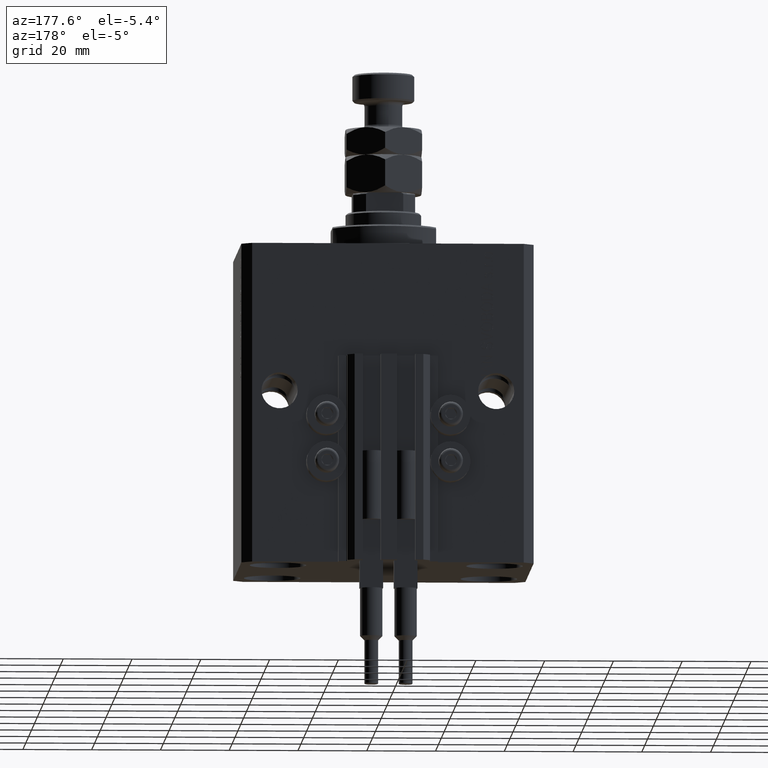
[diagram: clean part render]
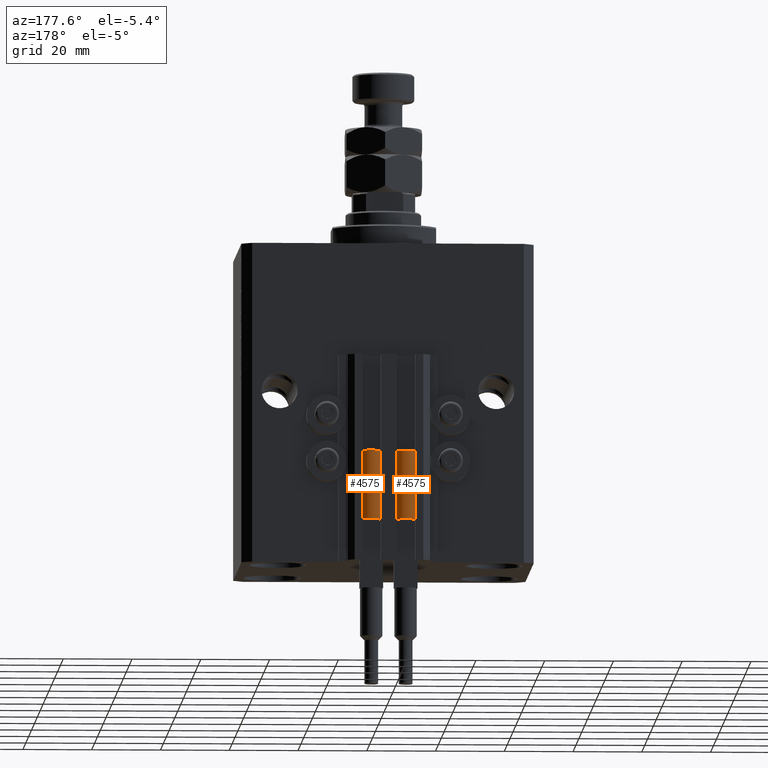
[diagram: same view with one multi-face feature highlighted, each face labeled with its STEP entity id]
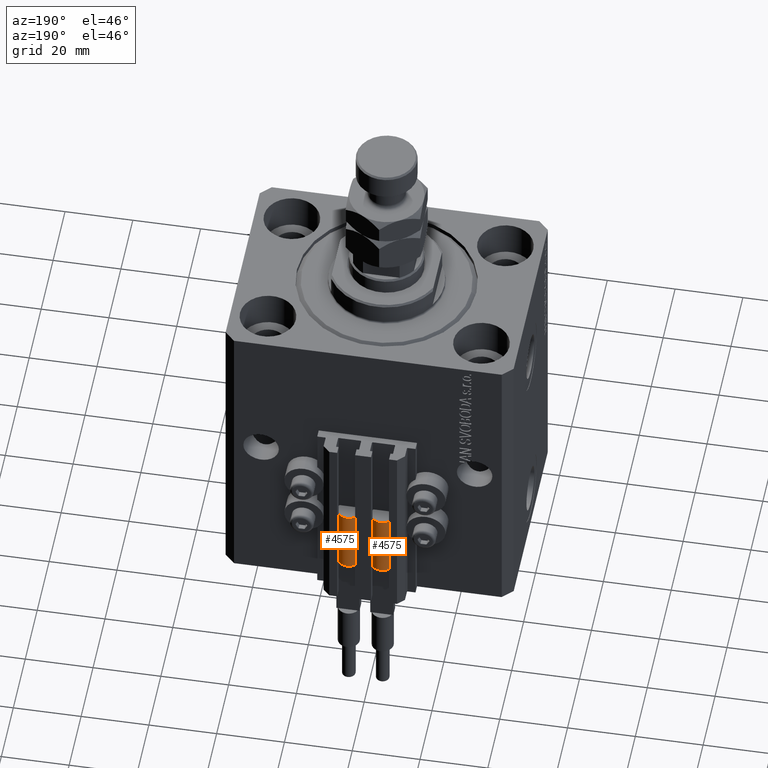
[diagram: same view with one multi-face feature highlighted, each face labeled with its STEP entity id]
A machine part, auxiliary view. The highlighted faces form ONE feature: a constant-radius fillet chain: 2 tangent blend faces with common blend radius 3.4 mm. The faces share edges in the B-rep.
A second angle (auxiliary view) of the same feature is appended — it is thin or edge-on in the first view.
Their STEP definitions:
[1] entity #4575 (Cylinder):
#440 = CARTESIAN_POINT ( 'NONE',  ( -3.051229260478471428, 1.500000000000000000, 20.00000000000000000 ) ) ;
#1053 = AXIS2_PLACEMENT_3D ( 'NONE', #26382, #7646, #22076 ) ;
#1371 = AXIS2_PLACEMENT_3D ( 'NONE', #21457, #40475, #25274 ) ;
#2376 = EDGE_LOOP ( 'NONE', ( #30359, #39360, #36001, #9195, #44308, #19512 ) ) ;
#4213 = VECTOR ( 'NONE', #20524, 1000.000000000000000 ) ;
#4240 = EDGE_CURVE ( 'NONE', #38510, #7663, #6944, .T. ) ;
#4380 = VERTEX_POINT ( 'NONE', #42641 ) ;
#4575 = ADVANCED_FACE ( 'NONE', ( #42260 ), #45801, .T. ) ;
#5878 = CIRCLE ( 'NONE', #10762, 3.400000000000000355 ) ;
#6488 = EDGE_CURVE ( 'NONE', #37951, #4380, #28127, .T. ) ;
#6944 = LINE ( 'NONE', #42139, #44544 ) ;
#7646 = DIRECTION ( 'NONE',  ( 0.000000000000000000, 0.000000000000000000, 1.000000000000000000 ) ) ;
#7663 = VERTEX_POINT ( 'NONE', #42529 ) ;
#8330 = VERTEX_POINT ( 'NONE', #33548 ) ;
#9170 = CIRCLE ( 'NONE', #1053, 3.400000000000000355 ) ;
#9195 = ORIENTED_EDGE ( 'NONE', *, *, #6488, .F. ) ;
#9308 = EDGE_CURVE ( 'NONE', #38510, #8330, #9170, .T. ) ;
#10360 = DIRECTION ( 'NONE',  ( 0.000000000000000000, 0.000000000000000000, 1.000000000000000000 ) ) ;
#10762 = AXIS2_PLACEMENT_3D ( 'NONE', #21004, #10360, #28846 ) ;
#11804 = DIRECTION ( 'NONE',  ( 0.000000000000000000, 0.000000000000000000, 1.000000000000000000 ) ) ;
#15821 = VERTEX_POINT ( 'NONE', #440 ) ;
#16665 = DIRECTION ( 'NONE',  ( -1.000000000000000000, 0.000000000000000000, 0.000000000000000000 ) ) ;
#19512 = ORIENTED_EDGE ( 'NONE', *, *, #20017, .F. ) ;
#20017 = EDGE_CURVE ( 'NONE', #8330, #15821, #30502, .T. ) ;
#20524 = DIRECTION ( 'NONE',  ( -0.000000000000000000, -0.000000000000000000, -1.000000000000000000 ) ) ;
#21004 = CARTESIAN_POINT ( 'NONE',  ( 0.000000000000000000, 0.000000000000000000, 0.000000000000000000 ) ) ;
#21457 = CARTESIAN_POINT ( 'NONE',  ( 0.000000000000000000, 0.000000000000000000, 20.00000000000000000 ) ) ;
#22076 = DIRECTION ( 'NONE',  ( 1.000000000000000000, 0.000000000000000000, 0.000000000000000000 ) ) ;
#22978 = CARTESIAN_POINT ( 'NONE',  ( 3.400000000000000355, 0.000000000000000000, 20.00000000000000000 ) ) ;
#23126 = AXIS2_PLACEMENT_3D ( 'NONE', #31057, #11804, #27247 ) ;
#25274 = DIRECTION ( 'NONE',  ( 1.000000000000000000, 0.000000000000000000, 0.000000000000000000 ) ) ;
#26382 = CARTESIAN_POINT ( 'NONE',  ( 0.000000000000000000, 0.000000000000000000, 20.00000000000000000 ) ) ;
#27063 = DIRECTION ( 'NONE',  ( -0.000000000000000000, -0.000000000000000000, -1.000000000000000000 ) ) ;
#27247 = DIRECTION ( 'NONE',  ( 1.000000000000000000, 0.000000000000000000, 0.000000000000000000 ) ) ;
#27882 = CARTESIAN_POINT ( 'NONE',  ( -3.400000000000000355, 0.000000000000000000, 20.00000000000000000 ) ) ;
#28127 = LINE ( 'NONE', #27882, #4213 ) ;
#28846 = DIRECTION ( 'NONE',  ( 1.000000000000000000, 0.000000000000000000, 0.000000000000000000 ) ) ;
#29581 = CIRCLE ( 'NONE', #23126, 3.400000000000000355 ) ;
#29700 = CARTESIAN_POINT ( 'NONE',  ( -3.399999999999999467, -4.915049848600952119E-16, 20.00000000000000000 ) ) ;
#30359 = ORIENTED_EDGE ( 'NONE', *, *, #9308, .F. ) ;
#30502 = CIRCLE ( 'NONE', #1371, 3.400000000000000355 ) ;
#31057 = CARTESIAN_POINT ( 'NONE',  ( 0.000000000000000000, 0.000000000000000000, 20.00000000000000000 ) ) ;
#33548 = CARTESIAN_POINT ( 'NONE',  ( 3.051229260478471428, 1.500000000000000000, 20.00000000000000000 ) ) ;
#34404 = CARTESIAN_POINT ( 'NONE',  ( 0.000000000000000000, 0.000000000000000000, 20.00000000000000000 ) ) ;
#35467 = EDGE_CURVE ( 'NONE', #7663, #4380, #5878, .T. ) ;
#36001 = ORIENTED_EDGE ( 'NONE', *, *, #35467, .T. ) ;
#37951 = VERTEX_POINT ( 'NONE', #29700 ) ;
#38510 = VERTEX_POINT ( 'NONE', #22978 ) ;
#39360 = ORIENTED_EDGE ( 'NONE', *, *, #4240, .T. ) ;
#40475 = DIRECTION ( 'NONE',  ( 0.000000000000000000, 0.000000000000000000, 1.000000000000000000 ) ) ;
#42139 = CARTESIAN_POINT ( 'NONE',  ( 3.400000000000000355, 4.163799117101001052E-16, 20.00000000000000000 ) ) ;
#42260 = FACE_OUTER_BOUND ( 'NONE', #2376, .T. ) ;
#42529 = CARTESIAN_POINT ( 'NONE',  ( 3.400000000000000355, 4.163799117101001052E-16, 0.000000000000000000 ) ) ;
#42641 = CARTESIAN_POINT ( 'NONE',  ( -3.400000000000000355, 0.000000000000000000, 0.000000000000000000 ) ) ;
#43256 = EDGE_CURVE ( 'NONE', #15821, #37951, #29581, .T. ) ;
#44308 = ORIENTED_EDGE ( 'NONE', *, *, #43256, .F. ) ;
#44544 = VECTOR ( 'NONE', #49475, 1000.000000000000000 ) ;
#44580 = AXIS2_PLACEMENT_3D ( 'NONE', #34404, #27063, #16665 ) ;
#45801 = CYLINDRICAL_SURFACE ( 'NONE', #44580, 3.400000000000000355 ) ;
#49475 = DIRECTION ( 'NONE',  ( -0.000000000000000000, -0.000000000000000000, -1.000000000000000000 ) ) ;
[2] entity #4575 (Cylinder):
#440 = CARTESIAN_POINT ( 'NONE',  ( -3.051229260478471428, 1.500000000000000000, 20.00000000000000000 ) ) ;
#1053 = AXIS2_PLACEMENT_3D ( 'NONE', #26382, #7646, #22076 ) ;
#1371 = AXIS2_PLACEMENT_3D ( 'NONE', #21457, #40475, #25274 ) ;
#2376 = EDGE_LOOP ( 'NONE', ( #30359, #39360, #36001, #9195, #44308, #19512 ) ) ;
#4213 = VECTOR ( 'NONE', #20524, 1000.000000000000000 ) ;
#4240 = EDGE_CURVE ( 'NONE', #38510, #7663, #6944, .T. ) ;
#4380 = VERTEX_POINT ( 'NONE', #42641 ) ;
#4575 = ADVANCED_FACE ( 'NONE', ( #42260 ), #45801, .T. ) ;
#5878 = CIRCLE ( 'NONE', #10762, 3.400000000000000355 ) ;
#6488 = EDGE_CURVE ( 'NONE', #37951, #4380, #28127, .T. ) ;
#6944 = LINE ( 'NONE', #42139, #44544 ) ;
#7646 = DIRECTION ( 'NONE',  ( 0.000000000000000000, 0.000000000000000000, 1.000000000000000000 ) ) ;
#7663 = VERTEX_POINT ( 'NONE', #42529 ) ;
#8330 = VERTEX_POINT ( 'NONE', #33548 ) ;
#9170 = CIRCLE ( 'NONE', #1053, 3.400000000000000355 ) ;
#9195 = ORIENTED_EDGE ( 'NONE', *, *, #6488, .F. ) ;
#9308 = EDGE_CURVE ( 'NONE', #38510, #8330, #9170, .T. ) ;
#10360 = DIRECTION ( 'NONE',  ( 0.000000000000000000, 0.000000000000000000, 1.000000000000000000 ) ) ;
#10762 = AXIS2_PLACEMENT_3D ( 'NONE', #21004, #10360, #28846 ) ;
#11804 = DIRECTION ( 'NONE',  ( 0.000000000000000000, 0.000000000000000000, 1.000000000000000000 ) ) ;
#15821 = VERTEX_POINT ( 'NONE', #440 ) ;
#16665 = DIRECTION ( 'NONE',  ( -1.000000000000000000, 0.000000000000000000, 0.000000000000000000 ) ) ;
#19512 = ORIENTED_EDGE ( 'NONE', *, *, #20017, .F. ) ;
#20017 = EDGE_CURVE ( 'NONE', #8330, #15821, #30502, .T. ) ;
#20524 = DIRECTION ( 'NONE',  ( -0.000000000000000000, -0.000000000000000000, -1.000000000000000000 ) ) ;
#21004 = CARTESIAN_POINT ( 'NONE',  ( 0.000000000000000000, 0.000000000000000000, 0.000000000000000000 ) ) ;
#21457 = CARTESIAN_POINT ( 'NONE',  ( 0.000000000000000000, 0.000000000000000000, 20.00000000000000000 ) ) ;
#22076 = DIRECTION ( 'NONE',  ( 1.000000000000000000, 0.000000000000000000, 0.000000000000000000 ) ) ;
#22978 = CARTESIAN_POINT ( 'NONE',  ( 3.400000000000000355, 0.000000000000000000, 20.00000000000000000 ) ) ;
#23126 = AXIS2_PLACEMENT_3D ( 'NONE', #31057, #11804, #27247 ) ;
#25274 = DIRECTION ( 'NONE',  ( 1.000000000000000000, 0.000000000000000000, 0.000000000000000000 ) ) ;
#26382 = CARTESIAN_POINT ( 'NONE',  ( 0.000000000000000000, 0.000000000000000000, 20.00000000000000000 ) ) ;
#27063 = DIRECTION ( 'NONE',  ( -0.000000000000000000, -0.000000000000000000, -1.000000000000000000 ) ) ;
#27247 = DIRECTION ( 'NONE',  ( 1.000000000000000000, 0.000000000000000000, 0.000000000000000000 ) ) ;
#27882 = CARTESIAN_POINT ( 'NONE',  ( -3.400000000000000355, 0.000000000000000000, 20.00000000000000000 ) ) ;
#28127 = LINE ( 'NONE', #27882, #4213 ) ;
#28846 = DIRECTION ( 'NONE',  ( 1.000000000000000000, 0.000000000000000000, 0.000000000000000000 ) ) ;
#29581 = CIRCLE ( 'NONE', #23126, 3.400000000000000355 ) ;
#29700 = CARTESIAN_POINT ( 'NONE',  ( -3.399999999999999467, -4.915049848600952119E-16, 20.00000000000000000 ) ) ;
#30359 = ORIENTED_EDGE ( 'NONE', *, *, #9308, .F. ) ;
#30502 = CIRCLE ( 'NONE', #1371, 3.400000000000000355 ) ;
#31057 = CARTESIAN_POINT ( 'NONE',  ( 0.000000000000000000, 0.000000000000000000, 20.00000000000000000 ) ) ;
#33548 = CARTESIAN_POINT ( 'NONE',  ( 3.051229260478471428, 1.500000000000000000, 20.00000000000000000 ) ) ;
#34404 = CARTESIAN_POINT ( 'NONE',  ( 0.000000000000000000, 0.000000000000000000, 20.00000000000000000 ) ) ;
#35467 = EDGE_CURVE ( 'NONE', #7663, #4380, #5878, .T. ) ;
#36001 = ORIENTED_EDGE ( 'NONE', *, *, #35467, .T. ) ;
#37951 = VERTEX_POINT ( 'NONE', #29700 ) ;
#38510 = VERTEX_POINT ( 'NONE', #22978 ) ;
#39360 = ORIENTED_EDGE ( 'NONE', *, *, #4240, .T. ) ;
#40475 = DIRECTION ( 'NONE',  ( 0.000000000000000000, 0.000000000000000000, 1.000000000000000000 ) ) ;
#42139 = CARTESIAN_POINT ( 'NONE',  ( 3.400000000000000355, 4.163799117101001052E-16, 20.00000000000000000 ) ) ;
#42260 = FACE_OUTER_BOUND ( 'NONE', #2376, .T. ) ;
#42529 = CARTESIAN_POINT ( 'NONE',  ( 3.400000000000000355, 4.163799117101001052E-16, 0.000000000000000000 ) ) ;
#42641 = CARTESIAN_POINT ( 'NONE',  ( -3.400000000000000355, 0.000000000000000000, 0.000000000000000000 ) ) ;
#43256 = EDGE_CURVE ( 'NONE', #15821, #37951, #29581, .T. ) ;
#44308 = ORIENTED_EDGE ( 'NONE', *, *, #43256, .F. ) ;
#44544 = VECTOR ( 'NONE', #49475, 1000.000000000000000 ) ;
#44580 = AXIS2_PLACEMENT_3D ( 'NONE', #34404, #27063, #16665 ) ;
#45801 = CYLINDRICAL_SURFACE ( 'NONE', #44580, 3.400000000000000355 ) ;
#49475 = DIRECTION ( 'NONE',  ( -0.000000000000000000, -0.000000000000000000, -1.000000000000000000 ) ) ;